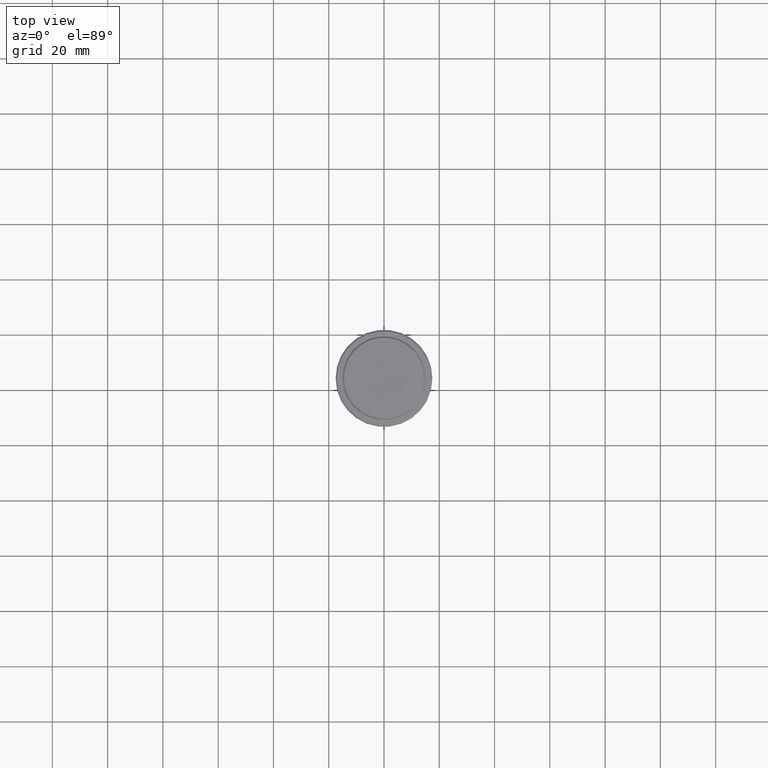
[diagram: clean part render]
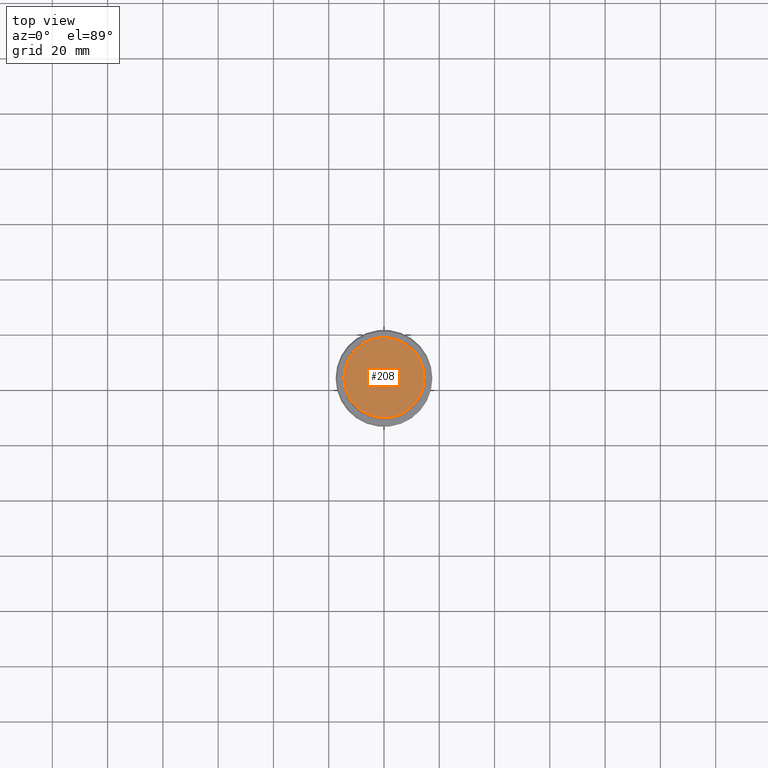
[diagram: same view with one face highlighted and labeled with its STEP entity id]
A machine part, top view. The second image highlights one B-rep face of the part: STEP entity #208.
In plain terms, the highlighted planar face has unit normal (0, -0, 1).
Its self-contained STEP definition (entity closure, byte-faithful):
#10 = CIRCLE ( 'NONE', #805, 14.49999999999998401 ) ;
#112 = EDGE_CURVE ( 'NONE', #1383, #587, #10, .T. ) ;
#124 = DIRECTION ( 'NONE',  ( -0.000000000000000000, -0.000000000000000000, 1.000000000000000000 ) ) ;
#181 = EDGE_LOOP ( 'NONE', ( #803, #1238 ) ) ;
#208 = ADVANCED_FACE ( 'NONE', ( #540 ), #1077, .T. ) ;
#388 = DIRECTION ( 'NONE',  ( -0.000000000000000000, -0.000000000000000000, 1.000000000000000000 ) ) ;
#445 = CARTESIAN_POINT ( 'NONE',  ( 0.000000000000000000, 0.000000000000000000, 0.000000000000000000 ) ) ;
#540 = FACE_OUTER_BOUND ( 'NONE', #181, .T. ) ;
#587 = VERTEX_POINT ( 'NONE', #1086 ) ;
#702 = DIRECTION ( 'NONE',  ( 1.000000000000000000, 0.000000000000000000, 0.000000000000000000 ) ) ;
#722 = CARTESIAN_POINT ( 'NONE',  ( -14.49999999999998401, 0.000000000000000000, 0.000000000000000000 ) ) ;
#803 = ORIENTED_EDGE ( 'NONE', *, *, #112, .T. ) ;
#805 = AXIS2_PLACEMENT_3D ( 'NONE', #445, #124, #863 ) ;
#863 = DIRECTION ( 'NONE',  ( 1.000000000000000000, 0.000000000000000000, 0.000000000000000000 ) ) ;
#876 = DIRECTION ( 'NONE',  ( 1.000000000000000000, 0.000000000000000000, 0.000000000000000000 ) ) ;
#917 = AXIS2_PLACEMENT_3D ( 'NONE', #1318, #1088, #876 ) ;
#923 = AXIS2_PLACEMENT_3D ( 'NONE', #1373, #388, #702 ) ;
#1077 = PLANE ( 'NONE',  #917 ) ;
#1086 = CARTESIAN_POINT ( 'NONE',  ( 14.49999999999998401, 1.806354028742345013E-15, 0.000000000000000000 ) ) ;
#1088 = DIRECTION ( 'NONE',  ( 0.000000000000000000, -0.000000000000000000, 1.000000000000000000 ) ) ;
#1123 = CIRCLE ( 'NONE', #923, 14.49999999999998401 ) ;
#1238 = ORIENTED_EDGE ( 'NONE', *, *, #1371, .T. ) ;
#1318 = CARTESIAN_POINT ( 'NONE',  ( 0.000000000000000000, 0.000000000000000000, 0.000000000000000000 ) ) ;
#1371 = EDGE_CURVE ( 'NONE', #587, #1383, #1123, .T. ) ;
#1373 = CARTESIAN_POINT ( 'NONE',  ( 0.000000000000000000, 0.000000000000000000, 0.000000000000000000 ) ) ;
#1383 = VERTEX_POINT ( 'NONE', #722 ) ;